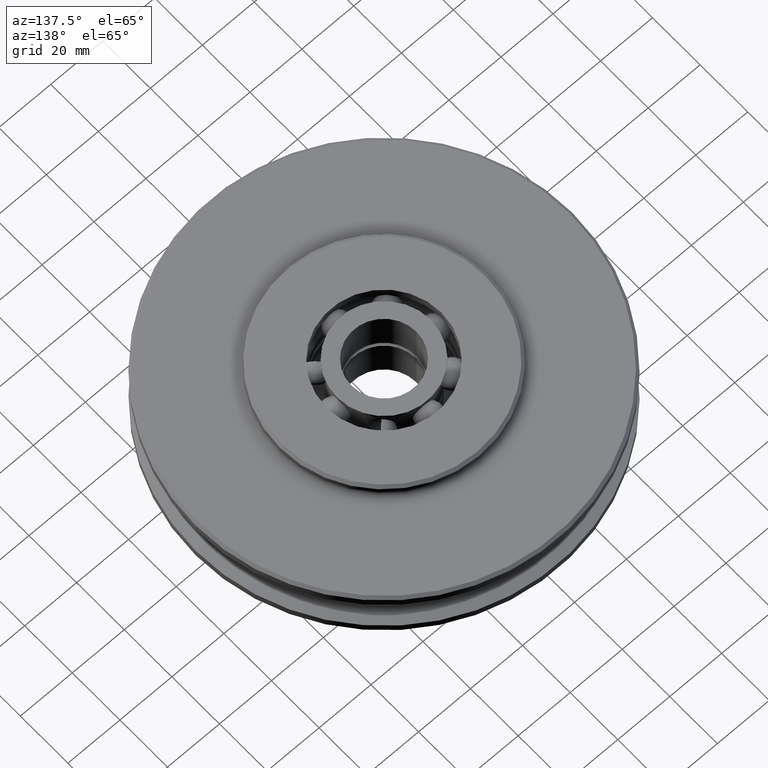
[diagram: clean part render]
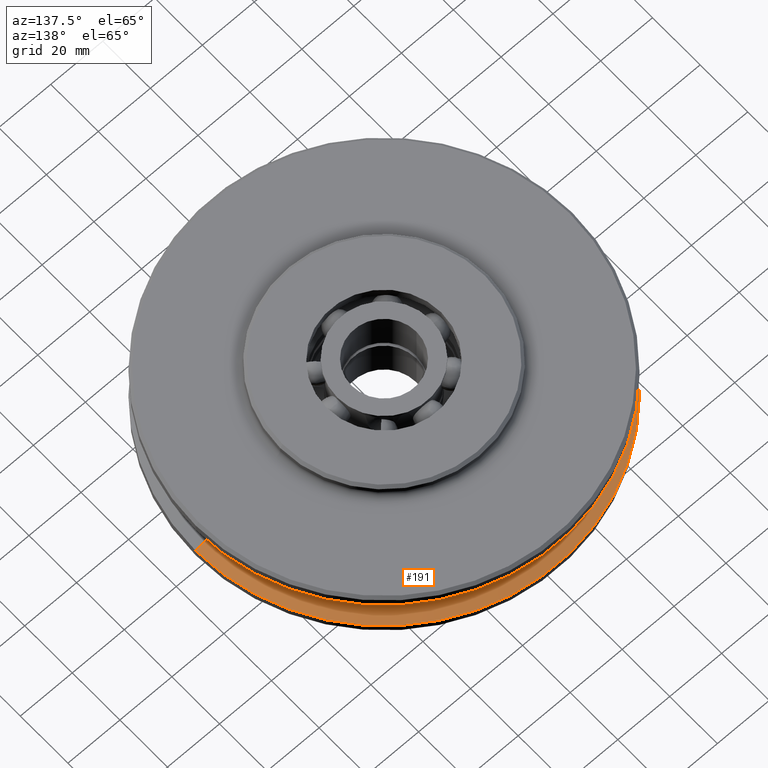
[diagram: same view with one face highlighted and labeled with its STEP entity id]
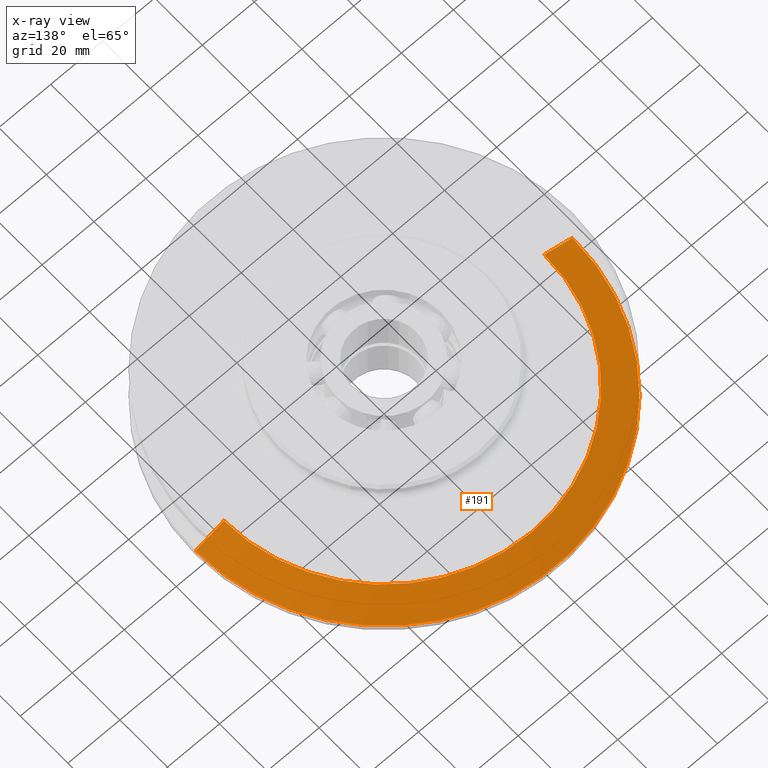
[diagram: x-ray of the same camera — body ghosted, the highlighted face saturated]
A machine part, auxiliary view. The second image highlights one B-rep face of the part: STEP entity #191.
The next image is the same camera in x-ray: the body ghosted, the highlighted face saturated — about 0% of this face is hidden behind the body in this view.
In plain terms, the highlighted conical surface has half-angle 67.5 deg.
Its self-contained STEP definition (entity closure, byte-faithful):
#191=ADVANCED_FACE('',(#481),#482,.T.);
#481=FACE_OUTER_BOUND('',#891,.T.);
#482=CONICAL_SURFACE('',#892,67.0833775,1.17809724537277);
#891=EDGE_LOOP('',(#1395,#1396,#1397,#1398));
#892=AXIS2_PLACEMENT_3D('',#1399,#1400,#1401);
#1395=ORIENTED_EDGE('',*,*,#2660,.F.);
#1396=ORIENTED_EDGE('',*,*,#2661,.T.);
#1397=ORIENTED_EDGE('',*,*,#2662,.F.);
#1398=ORIENTED_EDGE('',*,*,#2663,.F.);
#1399=CARTESIAN_POINT('',(0.0,0.0,-4.7381135));
#1400=DIRECTION('',(-0.0,-0.0,-1.0));
#1401=DIRECTION('',(1.0,0.0,0.0));
#2660=EDGE_CURVE('',#3271,#3267,#3272,.T.);
#2661=EDGE_CURVE('',#3271,#3273,#3274,.T.);
#2662=EDGE_CURVE('',#3265,#3273,#3275,.T.);
#2663=EDGE_CURVE('',#3267,#3265,#3276,.T.);
#3265=VERTEX_POINT('',#4788);
#3267=VERTEX_POINT('',#4790);
#3271=VERTEX_POINT('',#4794);
#3272=LINE('',#4795,#4796);
#3273=VERTEX_POINT('',#4797);
#3274=CIRCLE('',#4798,72.5);
#3275=LINE('',#4799,#4800);
#3276=CIRCLE('',#4801,61.666755);
#4788=CARTESIAN_POINT('',(-61.666755,7.5519994124554E-015,-2.494475));
#4790=CARTESIAN_POINT('',(61.666755,0.0,-2.494475));
#4794=CARTESIAN_POINT('',(72.5,0.0,-6.981752));
#4795=CARTESIAN_POINT('',(67.0833775,-8.21534435313686E-015,-4.7381135));
#4796=VECTOR('',#7966,1.0);
#4797=CARTESIAN_POINT('',(-72.5,8.87868929381831E-015,-6.981752));
#4798=AXIS2_PLACEMENT_3D('',#7967,#7968,#7969);
#4799=CARTESIAN_POINT('',(-67.0833775,8.21534435313686E-015,-4.7381135));
#4800=VECTOR('',#7970,1.0);
#4801=AXIS2_PLACEMENT_3D('',#7971,#7972,#7973);
#7966=DIRECTION('',(-0.923879532617135,1.13142611241733E-016,0.38268343210955));
#7967=CARTESIAN_POINT('',(0.0,0.0,-6.981752));
#7968=DIRECTION('',(0.0,0.0,1.0));
#7969=DIRECTION('',(1.0,0.0,0.0));
#7970=DIRECTION('',(-0.923879532617135,1.13142611241733E-016,-0.38268343210955));
#7971=CARTESIAN_POINT('',(0.0,0.0,-2.494475));
#7972=DIRECTION('',(0.0,0.0,1.0));
#7973=DIRECTION('',(1.0,0.0,0.0));